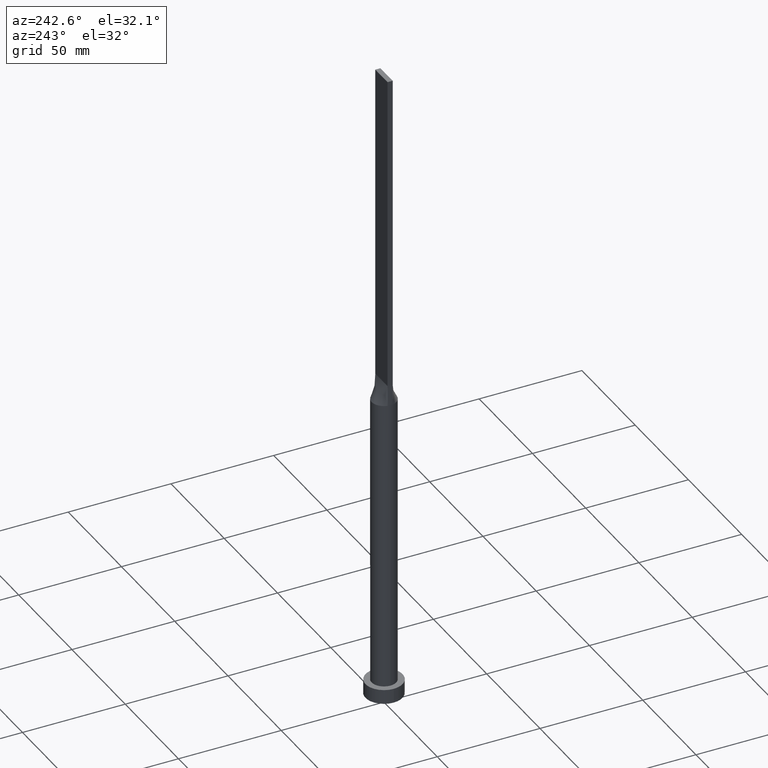
[diagram: clean part render]
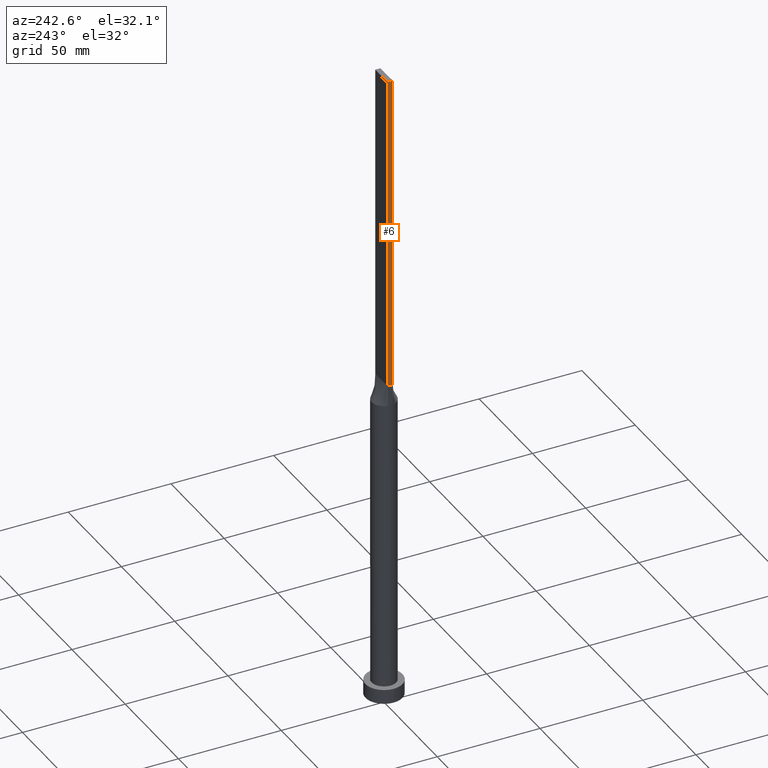
[diagram: same view with one face highlighted and labeled with its STEP entity id]
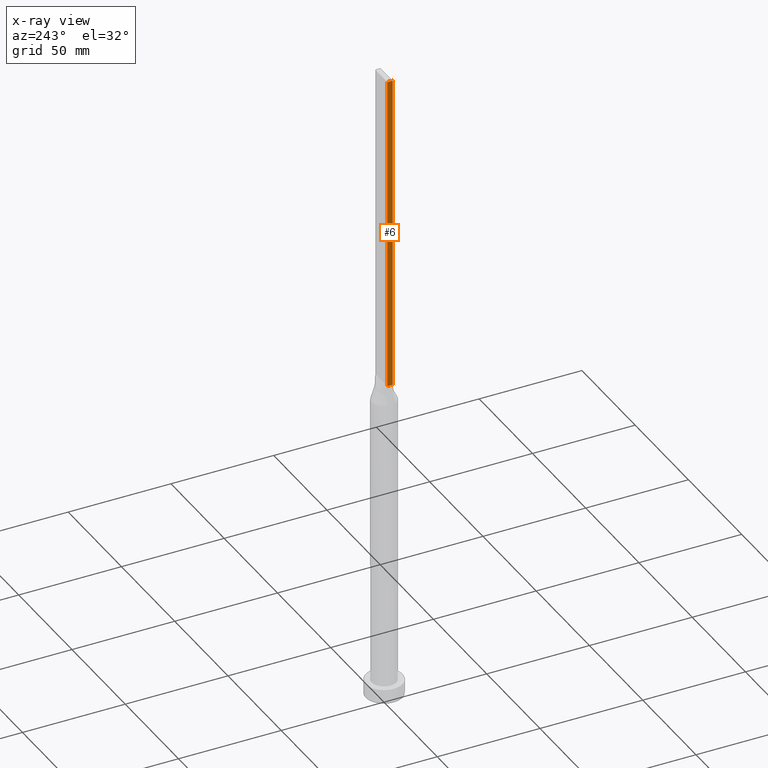
[diagram: x-ray of the same camera — body ghosted, the highlighted face saturated]
A machine part, auxiliary view. The second image highlights one B-rep face of the part: STEP entity #6.
The next image is the same camera in x-ray: the body ghosted, the highlighted face saturated — about 0% of this face is hidden behind the body in this view.
In plain terms, the highlighted planar face has unit normal (1, 0, -0).
Its self-contained STEP definition (entity closure, byte-faithful):
#6 = ADVANCED_FACE ( 'NONE', ( #400 ), #267, .F. ) ;
#10 = CARTESIAN_POINT ( 'NONE',  ( -5.750000000000000000, 1.250000000000000222, 160.0000000000000000 ) ) ;
#12 = CARTESIAN_POINT ( 'NONE',  ( -5.750000000000000000, -1.249999999999999112, 160.0000000000000000 ) ) ;
#38 = VECTOR ( 'NONE', #374, 1000.000000000000000 ) ;
#47 = ORIENTED_EDGE ( 'NONE', *, *, #354, .F. ) ;
#104 = EDGE_CURVE ( 'NONE', #250, #360, #176, .T. ) ;
#114 = CARTESIAN_POINT ( 'NONE',  ( -5.750000000000000000, 1.250000000000000222, 160.0000000000000000 ) ) ;
#123 = CARTESIAN_POINT ( 'NONE',  ( -5.750000000000000000, 1.250000000000000222, 315.0000000000000000 ) ) ;
#130 = DIRECTION ( 'NONE',  ( 1.000000000000000000, 0.000000000000000000, -0.000000000000000000 ) ) ;
#176 = LINE ( 'NONE', #10, #437 ) ;
#220 = VECTOR ( 'NONE', #257, 1000.000000000000000 ) ;
#238 = AXIS2_PLACEMENT_3D ( 'NONE', #600, #130, #545 ) ;
#250 = VERTEX_POINT ( 'NONE', #114 ) ;
#257 = DIRECTION ( 'NONE',  ( -0.000000000000000000, -0.000000000000000000, -1.000000000000000000 ) ) ;
#262 = LINE ( 'NONE', #123, #220 ) ;
#267 = PLANE ( 'NONE',  #238 ) ;
#281 = CARTESIAN_POINT ( 'NONE',  ( -5.750000000000000000, -1.249999999999999112, 315.0000000000000000 ) ) ;
#282 = DIRECTION ( 'NONE',  ( 0.000000000000000000, -1.000000000000000000, 0.000000000000000000 ) ) ;
#294 = VERTEX_POINT ( 'NONE', #449 ) ;
#319 = LINE ( 'NONE', #458, #38 ) ;
#327 = CARTESIAN_POINT ( 'NONE',  ( -5.750000000000000000, 1.250000000000000222, 315.0000000000000000 ) ) ;
#354 = EDGE_CURVE ( 'NONE', #294, #360, #566, .T. ) ;
#360 = VERTEX_POINT ( 'NONE', #12 ) ;
#374 = DIRECTION ( 'NONE',  ( 0.000000000000000000, -1.000000000000000000, 0.000000000000000000 ) ) ;
#385 = EDGE_LOOP ( 'NONE', ( #497, #47, #575, #529 ) ) ;
#400 = FACE_OUTER_BOUND ( 'NONE', #385, .T. ) ;
#426 = EDGE_CURVE ( 'NONE', #435, #294, #319, .T. ) ;
#435 = VERTEX_POINT ( 'NONE', #327 ) ;
#437 = VECTOR ( 'NONE', #282, 1000.000000000000000 ) ;
#439 = VECTOR ( 'NONE', #513, 1000.000000000000000 ) ;
#449 = CARTESIAN_POINT ( 'NONE',  ( -5.750000000000000000, -1.249999999999999112, 315.0000000000000000 ) ) ;
#458 = CARTESIAN_POINT ( 'NONE',  ( -5.750000000000000000, 1.250000000000000222, 315.0000000000000000 ) ) ;
#497 = ORIENTED_EDGE ( 'NONE', *, *, #104, .T. ) ;
#513 = DIRECTION ( 'NONE',  ( -0.000000000000000000, -0.000000000000000000, -1.000000000000000000 ) ) ;
#529 = ORIENTED_EDGE ( 'NONE', *, *, #584, .T. ) ;
#545 = DIRECTION ( 'NONE',  ( -0.000000000000000000, 0.000000000000000000, -1.000000000000000000 ) ) ;
#566 = LINE ( 'NONE', #281, #439 ) ;
#575 = ORIENTED_EDGE ( 'NONE', *, *, #426, .F. ) ;
#584 = EDGE_CURVE ( 'NONE', #435, #250, #262, .T. ) ;
#600 = CARTESIAN_POINT ( 'NONE',  ( -5.750000000000000000, 1.250000000000000222, 315.0000000000000000 ) ) ;